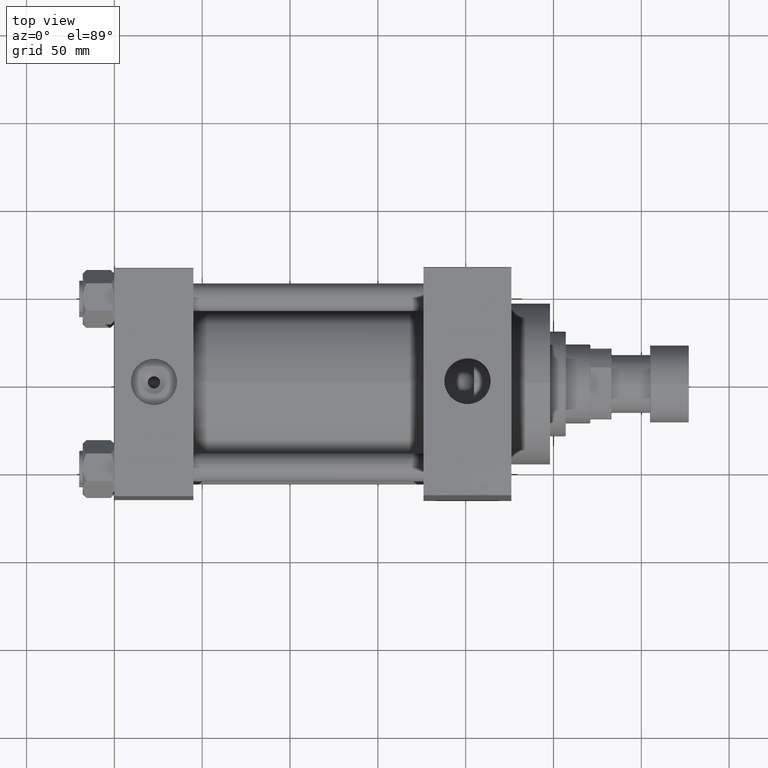
[diagram: clean part render]
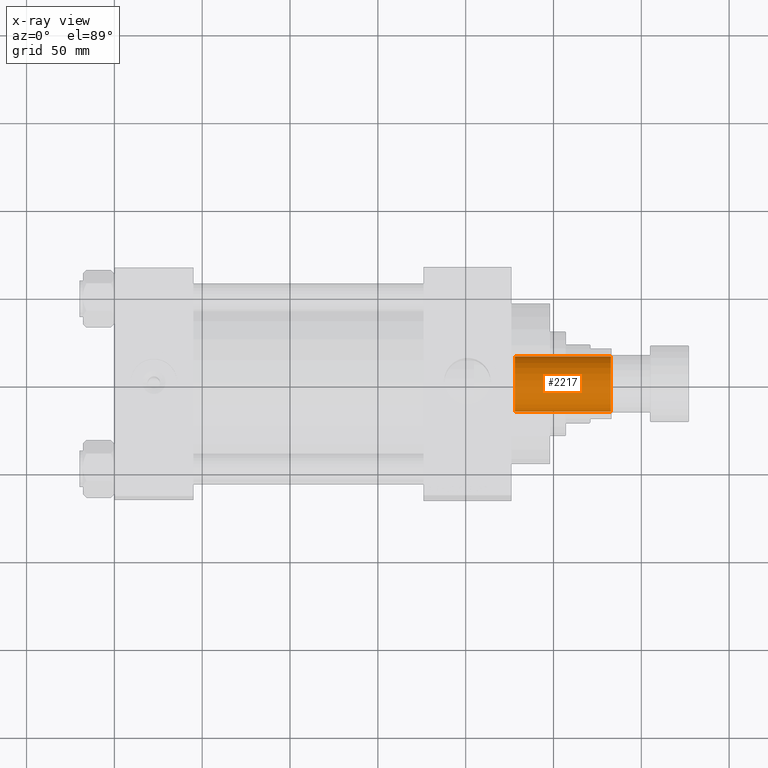
[diagram: x-ray — body ghosted, one internal face saturated and labeled with its STEP entity id]
A machine part, top view, then the same camera in x-ray: the body is ghosted and one INTERNAL B-rep face — a face not visible from any outside direction — is saturated and labeled: STEP entity #2217.
In plain terms, the highlighted cylindrical surface (edge-blend (fillet) strip) has radius 15.75 mm, axis along (1, 0, 0).
Its self-contained STEP definition (entity closure, byte-faithful):
#1438 = DIRECTION ( 'NONE',  ( 1.000000000000000000, 0.000000000000000000, 0.000000000000000000 ) ) ;
#1521 = CARTESIAN_POINT ( 'NONE',  ( -15.74999999999999289, 1.928818708657080556E-15, 238.0000000000000000 ) ) ;
#2217 = ADVANCED_FACE ( 'NONE', ( #13265 ), #24978, .F. ) ;
#2974 = EDGE_CURVE ( 'NONE', #35356, #22766, #14294, .T. ) ;
#3761 = VERTEX_POINT ( 'NONE', #32928 ) ;
#5418 = LINE ( 'NONE', #1521, #17036 ) ;
#9592 = DIRECTION ( 'NONE',  ( 1.000000000000000000, 0.000000000000000000, 0.000000000000000000 ) ) ;
#10154 = DIRECTION ( 'NONE',  ( -0.000000000000000000, -0.000000000000000000, 1.000000000000000000 ) ) ;
#13265 = FACE_OUTER_BOUND ( 'NONE', #46783, .T. ) ;
#13480 = VERTEX_POINT ( 'NONE', #32137 ) ;
#13484 = DIRECTION ( 'NONE',  ( -0.000000000000000000, -0.000000000000000000, 1.000000000000000000 ) ) ;
#14294 = LINE ( 'NONE', #39958, #27320 ) ;
#17036 = VECTOR ( 'NONE', #13484, 1000.000000000000000 ) ;
#17564 = ORIENTED_EDGE ( 'NONE', *, *, #2974, .F. ) ;
#18491 = CIRCLE ( 'NONE', #48148, 15.74999999999999289 ) ;
#19459 = CARTESIAN_POINT ( 'NONE',  ( 0.000000000000000000, 0.000000000000000000, 183.0000000000000000 ) ) ;
#20932 = DIRECTION ( 'NONE',  ( -0.000000000000000000, -0.000000000000000000, 1.000000000000000000 ) ) ;
#21551 = CARTESIAN_POINT ( 'NONE',  ( 0.000000000000000000, 0.000000000000000000, 238.0000000000000000 ) ) ;
#22264 = AXIS2_PLACEMENT_3D ( 'NONE', #19459, #20932, #36326 ) ;
#22766 = VERTEX_POINT ( 'NONE', #38324 ) ;
#24697 = ORIENTED_EDGE ( 'NONE', *, *, #38280, .T. ) ;
#24978 = CYLINDRICAL_SURFACE ( 'NONE', #26556, 15.74999999999999289 ) ;
#26556 = AXIS2_PLACEMENT_3D ( 'NONE', #21551, #43073, #9592 ) ;
#27320 = VECTOR ( 'NONE', #10154, 1000.000000000000000 ) ;
#28800 = EDGE_CURVE ( 'NONE', #3761, #35356, #37090, .T. ) ;
#30358 = ORIENTED_EDGE ( 'NONE', *, *, #47708, .T. ) ;
#30610 = CARTESIAN_POINT ( 'NONE',  ( 15.74999999999998934, 0.000000000000000000, 183.0000000000000000 ) ) ;
#32137 = CARTESIAN_POINT ( 'NONE',  ( -15.74999999999999289, 1.928818708657080556E-15, 237.6999999999999318 ) ) ;
#32928 = CARTESIAN_POINT ( 'NONE',  ( -15.74999999999998934, 1.928818708657080161E-15, 183.0000000000000000 ) ) ;
#34912 = CARTESIAN_POINT ( 'NONE',  ( 0.000000000000000000, 0.000000000000000000, 237.6999999999999318 ) ) ;
#35356 = VERTEX_POINT ( 'NONE', #30610 ) ;
#36326 = DIRECTION ( 'NONE',  ( 1.000000000000000000, 0.000000000000000000, 0.000000000000000000 ) ) ;
#37090 = CIRCLE ( 'NONE', #22264, 15.74999999999998934 ) ;
#38280 = EDGE_CURVE ( 'NONE', #3761, #13480, #5418, .T. ) ;
#38324 = CARTESIAN_POINT ( 'NONE',  ( 15.74999999999999289, 0.000000000000000000, 237.6999999999999318 ) ) ;
#39958 = CARTESIAN_POINT ( 'NONE',  ( 15.74999999999999289, 0.000000000000000000, 238.0000000000000000 ) ) ;
#42645 = ORIENTED_EDGE ( 'NONE', *, *, #28800, .F. ) ;
#43073 = DIRECTION ( 'NONE',  ( -0.000000000000000000, -0.000000000000000000, 1.000000000000000000 ) ) ;
#45658 = DIRECTION ( 'NONE',  ( 0.000000000000000000, 0.000000000000000000, 1.000000000000000000 ) ) ;
#46783 = EDGE_LOOP ( 'NONE', ( #42645, #24697, #30358, #17564 ) ) ;
#47708 = EDGE_CURVE ( 'NONE', #13480, #22766, #18491, .T. ) ;
#48148 = AXIS2_PLACEMENT_3D ( 'NONE', #34912, #45658, #1438 ) ;